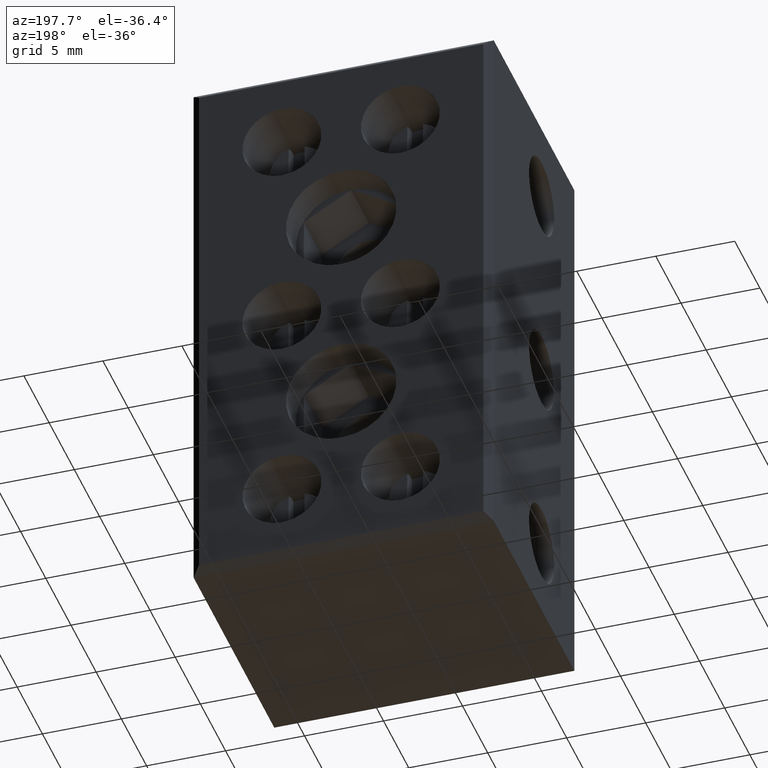
[diagram: clean part render]
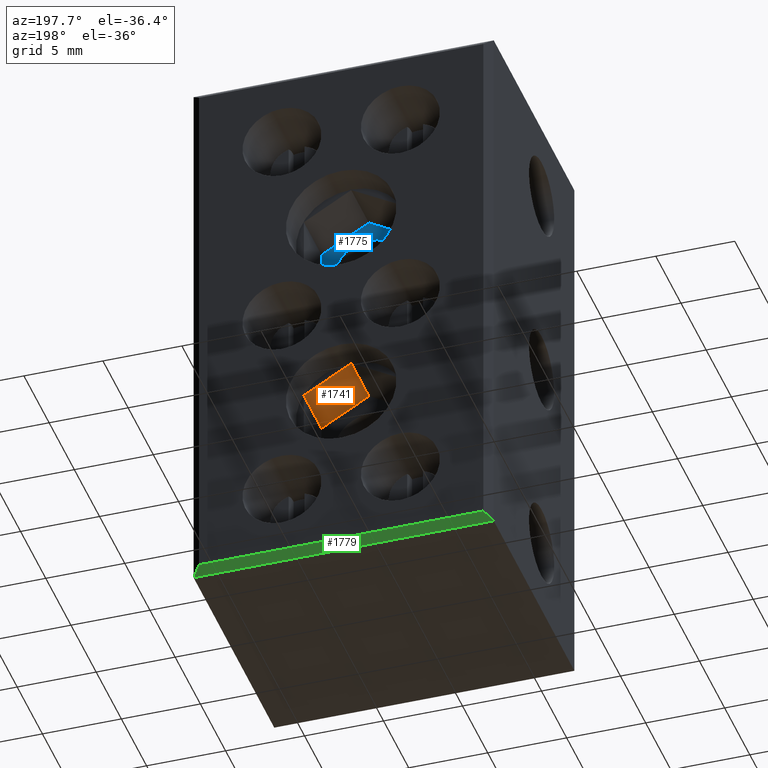
[diagram: same view with three faces highlighted in distinct colors, each labeled with its STEP entity id]
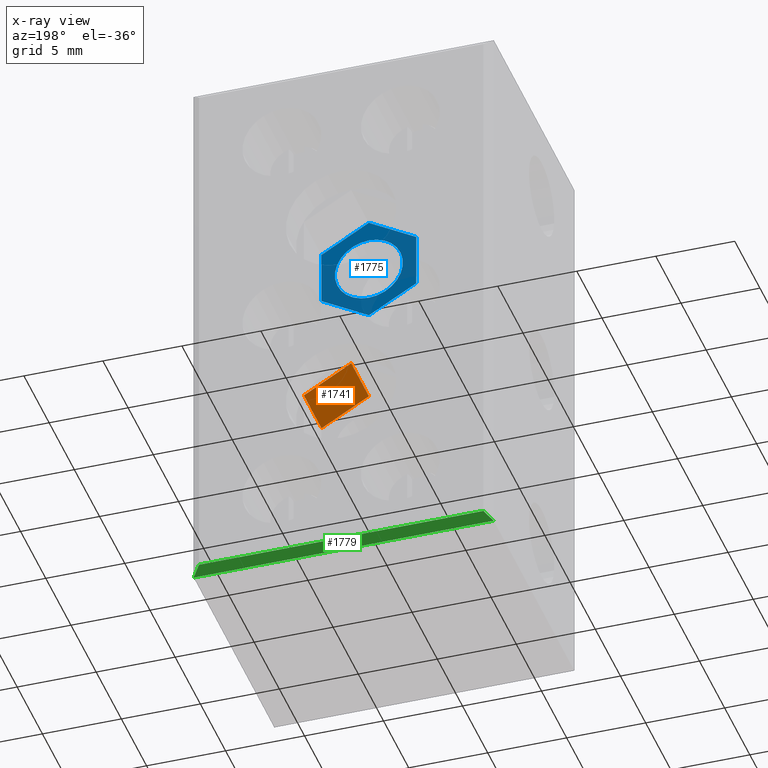
[diagram: x-ray of the same camera — body ghosted, the three highlighted faces saturated]
A machine part, auxiliary view with three faces highlighted in distinct colors.
The next image is the same camera in x-ray (body ghosted, the three faces saturated) — at least one of them is partly hidden behind the body in this view.
Their STEP definitions:

[orange] entity #1741 — the highlighted planar face has unit normal (0.5, -0, 0.866).
#332 = CARTESIAN_POINT ( 'NONE',  ( 6487.257784387873500, 15.00000000000000400, -21.02359777509169100 ) ) ;
#333 = DIRECTION ( 'NONE',  ( -0.8660254037844640200, -0.0000000000000000000, 0.4999999999999558100 ) ) ;
#371 = LINE ( 'NONE', #332, #5658 ) ;
#513 = CARTESIAN_POINT ( 'NONE',  ( 6490.257784387872600, 11.50000000000000200, -22.75564858265991600 ) ) ;
#537 = LINE ( 'NONE', #513, #5666 ) ;
#541 = DIRECTION ( 'NONE',  ( -0.0000000000000000000, -1.000000000000000000, -0.0000000000000000000 ) ) ;
#565 = CARTESIAN_POINT ( 'NONE',  ( 6487.257784387873500, 11.50000000000000200, -21.02359777509169100 ) ) ;
#580 = LINE ( 'NONE', #565, #5756 ) ;
#591 = DIRECTION ( 'NONE',  ( 0.8660254037844640200, 0.0000000000000000000, -0.4999999999999558100 ) ) ;
#626 = LINE ( 'NONE', #644, #5752 ) ;
#633 = DIRECTION ( 'NONE',  ( -0.0000000000000000000, -1.000000000000000000, -0.0000000000000000000 ) ) ;
#644 = CARTESIAN_POINT ( 'NONE',  ( 6487.257784387873500, 11.50000000000000200, -21.02359777509171600 ) ) ;
#1284 = EDGE_CURVE ( 'NONE', #2378, #2377, #371, .T. ) ;
#1340 = EDGE_CURVE ( 'NONE', #2378, #2379, #537, .T. ) ;
#1355 = EDGE_CURVE ( 'NONE', #2395, #2379, #580, .T. ) ;
#1372 = EDGE_CURVE ( 'NONE', #2377, #2395, #626, .T. ) ;
#1741 = ADVANCED_FACE ( 'NONE', ( #7526 ), #7547, .F. ) ;
#2377 = VERTEX_POINT ( 'NONE', #8197 ) ;
#2378 = VERTEX_POINT ( 'NONE', #8213 ) ;
#2379 = VERTEX_POINT ( 'NONE', #8222 ) ;
#2395 = VERTEX_POINT ( 'NONE', #8235 ) ;
#2611 = EDGE_LOOP ( 'NONE', ( #3008, #3032, #3029, #3030 ) ) ;
#3008 = ORIENTED_EDGE ( 'NONE', *, *, #1340, .T. ) ;
#3029 = ORIENTED_EDGE ( 'NONE', *, *, #1372, .F. ) ;
#3030 = ORIENTED_EDGE ( 'NONE', *, *, #1284, .F. ) ;
#3032 = ORIENTED_EDGE ( 'NONE', *, *, #1355, .F. ) ;
#4297 = AXIS2_PLACEMENT_3D ( 'NONE', #7520, #7540, #7550 ) ;
#5658 = VECTOR ( 'NONE', #333, 1000.000000000000100 ) ;
#5666 = VECTOR ( 'NONE', #541, 1000.000000000000000 ) ;
#5752 = VECTOR ( 'NONE', #633, 1000.000000000000000 ) ;
#5756 = VECTOR ( 'NONE', #591, 1000.000000000000100 ) ;
#7520 = CARTESIAN_POINT ( 'NONE',  ( 6487.257784387873500, 11.50000000000000200, -21.02359777509169100 ) ) ;
#7526 = FACE_OUTER_BOUND ( 'NONE', #2611, .T. ) ;
#7540 = DIRECTION ( 'NONE',  ( 0.4999999999999558700, -0.0000000000000000000, 0.8660254037844641300 ) ) ;
#7547 = PLANE ( 'NONE',  #4297 ) ;
#7550 = DIRECTION ( 'NONE',  ( 0.8660254037844640200, 0.0000000000000000000, -0.4999999999999558100 ) ) ;
#8197 = CARTESIAN_POINT ( 'NONE',  ( 6487.257784387873500, 15.00000000000000400, -21.02359777509178700 ) ) ;
#8213 = CARTESIAN_POINT ( 'NONE',  ( 6490.257784387872600, 15.00000000000000400, -22.75564858265991600 ) ) ;
#8222 = CARTESIAN_POINT ( 'NONE',  ( 6490.257784387872600, 11.50000000000000200, -22.75564858265991600 ) ) ;
#8235 = CARTESIAN_POINT ( 'NONE',  ( 6487.257784387873500, 11.50000000000000200, -21.02359777509169400 ) ) ;

[blue] entity #1775 — the highlighted planar face has unit normal (0, 1, 0).
#335 = LINE ( 'NONE', #370, #5613 ) ;
#368 = DIRECTION ( 'NONE',  ( 0.0000000000000000000, -0.0000000000000000000, 1.000000000000000000 ) ) ;
#370 = CARTESIAN_POINT ( 'NONE',  ( 6484.257784387873500, 11.50000000000000200, -8.039324876517927300 ) ) ;
#520 = LINE ( 'NONE', #529, #5699 ) ;
#529 = CARTESIAN_POINT ( 'NONE',  ( 6487.257784387873500, 11.50000000000000200, -8.039324876517927300 ) ) ;
#538 = DIRECTION ( 'NONE',  ( 0.8660254037844596900, 0.0000000000000000000, -0.4999999999999634700 ) ) ;
#566 = DIRECTION ( 'NONE',  ( -0.8660254037844367100, 0.0000000000000000000, -0.5000000000000034400 ) ) ;
#568 = DIRECTION ( 'NONE',  ( -0.0000000000000000000, 0.0000000000000000000, -1.000000000000000000 ) ) ;
#571 = CARTESIAN_POINT ( 'NONE',  ( 6490.257784387873500, 11.50000000000000200, -8.039324876517927300 ) ) ;
#584 = LINE ( 'NONE', #594, #5710 ) ;
#587 = LINE ( 'NONE', #571, #5672 ) ;
#594 = CARTESIAN_POINT ( 'NONE',  ( 6490.257784387873500, 11.50000000000000200, -13.23547729922364100 ) ) ;
#707 = DIRECTION ( 'NONE',  ( -0.8660254037844475900, 0.0000000000000000000, 0.4999999999999845100 ) ) ;
#718 = CARTESIAN_POINT ( 'NONE',  ( 6487.257784387870700, 11.50000000000000200, -14.96752810679413800 ) ) ;
#731 = LINE ( 'NONE', #718, #5743 ) ;
#748 = LINE ( 'NONE', #761, #5822 ) ;
#761 = CARTESIAN_POINT ( 'NONE',  ( 6484.257784387873500, 11.50000000000000200, -9.771375684087036700 ) ) ;
#762 = DIRECTION ( 'NONE',  ( 0.8660254037844178400, 0.0000000000000000000, 0.5000000000000360800 ) ) ;
#795 = DIRECTION ( 'NONE',  ( 0.0000000000000000000, 0.0000000000000000000, 1.000000000000000000 ) ) ;
#797 = DIRECTION ( 'NONE',  ( -0.0000000000000000000, -1.000000000000000000, -0.0000000000000000000 ) ) ;
#822 = CARTESIAN_POINT ( 'NONE',  ( 6487.257784387872600, 11.50000000000000200, -11.50342649165530100 ) ) ;
#987 = EDGE_CURVE ( 'NONE', #6464, #6497, #5965, .T. ) ;
#1279 = EDGE_CURVE ( 'NONE', #2382, #2366, #335, .T. ) ;
#1335 = EDGE_CURVE ( 'NONE', #2360, #2393, #520, .T. ) ;
#1347 = EDGE_CURVE ( 'NONE', #2393, #2365, #587, .T. ) ;
#1358 = EDGE_CURVE ( 'NONE', #2365, #2367, #584, .T. ) ;
#1399 = EDGE_CURVE ( 'NONE', #2367, #2382, #731, .T. ) ;
#1417 = EDGE_CURVE ( 'NONE', #2366, #2360, #748, .T. ) ;
#1429 = EDGE_CURVE ( 'NONE', #6497, #6464, #5783, .T. ) ;
#1775 = ADVANCED_FACE ( 'NONE', ( #7692, #7718 ), #7694, .T. ) ;
#2360 = VERTEX_POINT ( 'NONE', #8212 ) ;
#2365 = VERTEX_POINT ( 'NONE', #8195 ) ;
#2366 = VERTEX_POINT ( 'NONE', #8204 ) ;
#2367 = VERTEX_POINT ( 'NONE', #8220 ) ;
#2382 = VERTEX_POINT ( 'NONE', #8205 ) ;
#2393 = VERTEX_POINT ( 'NONE', #8232 ) ;
#2710 = EDGE_LOOP ( 'NONE', ( #3086, #3091, #3082, #3000, #3103, #3094 ) ) ;
#2728 = EDGE_LOOP ( 'NONE', ( #3117, #3070 ) ) ;
#3000 = ORIENTED_EDGE ( 'NONE', *, *, #1335, .T. ) ;
#3070 = ORIENTED_EDGE ( 'NONE', *, *, #1429, .T. ) ;
#3082 = ORIENTED_EDGE ( 'NONE', *, *, #1417, .T. ) ;
#3086 = ORIENTED_EDGE ( 'NONE', *, *, #1399, .T. ) ;
#3091 = ORIENTED_EDGE ( 'NONE', *, *, #1279, .T. ) ;
#3094 = ORIENTED_EDGE ( 'NONE', *, *, #1358, .T. ) ;
#3103 = ORIENTED_EDGE ( 'NONE', *, *, #1347, .T. ) ;
#3117 = ORIENTED_EDGE ( 'NONE', *, *, #987, .T. ) ;
#4358 = AXIS2_PLACEMENT_3D ( 'NONE', #7675, #7681, #7693 ) ;
#4760 = CARTESIAN_POINT ( 'NONE',  ( 6487.257784387872600, 11.50000000000000200, -11.50342649165530100 ) ) ;
#4761 = DIRECTION ( 'NONE',  ( 0.0000000000000000000, 0.0000000000000000000, 1.000000000000000000 ) ) ;
#4767 = DIRECTION ( 'NONE',  ( -0.0000000000000000000, -1.000000000000000000, -0.0000000000000000000 ) ) ;
#5613 = VECTOR ( 'NONE', #368, 1000.000000000000000 ) ;
#5672 = VECTOR ( 'NONE', #568, 1000.000000000000000 ) ;
#5699 = VECTOR ( 'NONE', #538, 1000.000000000000200 ) ;
#5710 = VECTOR ( 'NONE', #566, 1000.000000000000000 ) ;
#5743 = VECTOR ( 'NONE', #707, 1000.000000000000000 ) ;
#5783 = CIRCLE ( 'NONE', #5805, 2.150000000000308100 ) ;
#5805 = AXIS2_PLACEMENT_3D ( 'NONE', #822, #797, #795 ) ;
#5822 = VECTOR ( 'NONE', #762, 1000.000000000000000 ) ;
#5959 = AXIS2_PLACEMENT_3D ( 'NONE', #4760, #4767, #4761 ) ;
#5965 = CIRCLE ( 'NONE', #5959, 2.150000000000308100 ) ;
#6464 = VERTEX_POINT ( 'NONE', #7447 ) ;
#6497 = VERTEX_POINT ( 'NONE', #7402 ) ;
#7402 = CARTESIAN_POINT ( 'NONE',  ( 6487.257784387872600, 11.50000000000000200, -13.65342649165560800 ) ) ;
#7447 = CARTESIAN_POINT ( 'NONE',  ( 6487.257784387872600, 11.50000000000000200, -9.353426491654993000 ) ) ;
#7675 = CARTESIAN_POINT ( 'NONE',  ( 6487.257784387873500, 11.50000000000000200, -8.039324876517927300 ) ) ;
#7681 = DIRECTION ( 'NONE',  ( 0.0000000000000000000, 1.000000000000000000, 0.0000000000000000000 ) ) ;
#7692 = FACE_OUTER_BOUND ( 'NONE', #2710, .T. ) ;
#7693 = DIRECTION ( 'NONE',  ( 0.0000000000000000000, -0.0000000000000000000, 1.000000000000000000 ) ) ;
#7694 = PLANE ( 'NONE',  #4358 ) ;
#7718 = FACE_BOUND ( 'NONE', #2728, .T. ) ;
#8195 = CARTESIAN_POINT ( 'NONE',  ( 6490.257784387873500, 11.50000000000000200, -13.23547729922364100 ) ) ;
#8204 = CARTESIAN_POINT ( 'NONE',  ( 6484.257784387873500, 11.50000000000000200, -9.771375684087036700 ) ) ;
#8205 = CARTESIAN_POINT ( 'NONE',  ( 6484.257784387873500, 11.50000000000000200, -13.23547729922680500 ) ) ;
#8212 = CARTESIAN_POINT ( 'NONE',  ( 6487.257784387873500, 11.50000000000000200, -8.039324876517930800 ) ) ;
#8220 = CARTESIAN_POINT ( 'NONE',  ( 6487.257784387870700, 11.50000000000000200, -14.96752810679413800 ) ) ;
#8232 = CARTESIAN_POINT ( 'NONE',  ( 6490.257784387873500, 11.50000000000000200, -9.771375684086702800 ) ) ;

[green] entity #1779 — the highlighted planar face has unit normal (0, 0.7071, -0.7071).
#435 = LINE ( 'NONE', #456, #5641 ) ;
#436 = DIRECTION ( 'NONE',  ( 1.000000000000000000, -0.0000000000000000000, 0.0000000000000000000 ) ) ;
#456 = CARTESIAN_POINT ( 'NONE',  ( 6495.254189631172300, 17.00000000000000000, -35.50342649166538000 ) ) ;
#553 = DIRECTION ( 'NONE',  ( 0.5773502691893868100, -0.5773502691895910900, -0.5773502691898995100 ) ) ;
#577 = LINE ( 'NONE', #578, #5677 ) ;
#578 = CARTESIAN_POINT ( 'NONE',  ( 6496.257784387882600, 17.00000000000000000, -35.50342649166538000 ) ) ;
#599 = CARTESIAN_POINT ( 'NONE',  ( 6477.757784387872600, 16.50000000001032100, -36.00342649165533300 ) ) ;
#609 = LINE ( 'NONE', #599, #5712 ) ;
#622 = DIRECTION ( 'NONE',  ( -1.000000000000000000, -0.0000000000000000000, 0.0000000000000000000 ) ) ;
#628 = DIRECTION ( 'NONE',  ( 0.5773502691897299800, 0.5773502691894174500, 0.5773502691897299800 ) ) ;
#636 = CARTESIAN_POINT ( 'NONE',  ( 6496.004189568775500, 16.50000000001032100, -36.00342649165533300 ) ) ;
#640 = LINE ( 'NONE', #636, #5716 ) ;
#1313 = EDGE_CURVE ( 'NONE', #6640, #6638, #435, .T. ) ;
#1351 = EDGE_CURVE ( 'NONE', #6638, #2397, #577, .T. ) ;
#1364 = EDGE_CURVE ( 'NONE', #2398, #6640, #609, .T. ) ;
#1369 = EDGE_CURVE ( 'NONE', #2397, #2398, #640, .T. ) ;
#1779 = ADVANCED_FACE ( 'NONE', ( #7725 ), #7671, .T. ) ;
#2397 = VERTEX_POINT ( 'NONE', #8187 ) ;
#2398 = VERTEX_POINT ( 'NONE', #8194 ) ;
#2675 = EDGE_LOOP ( 'NONE', ( #2991, #3040, #2959, #2945 ) ) ;
#2945 = ORIENTED_EDGE ( 'NONE', *, *, #1369, .T. ) ;
#2959 = ORIENTED_EDGE ( 'NONE', *, *, #1351, .T. ) ;
#2991 = ORIENTED_EDGE ( 'NONE', *, *, #1364, .T. ) ;
#3040 = ORIENTED_EDGE ( 'NONE', *, *, #1313, .T. ) ;
#4373 = AXIS2_PLACEMENT_3D ( 'NONE', #7761, #7766, #7739 ) ;
#5641 = VECTOR ( 'NONE', #436, 1000.000000000000000 ) ;
#5677 = VECTOR ( 'NONE', #553, 1000.000000000000100 ) ;
#5712 = VECTOR ( 'NONE', #628, 1000.000000000000000 ) ;
#5716 = VECTOR ( 'NONE', #622, 1000.000000000000000 ) ;
#6638 = VERTEX_POINT ( 'NONE', #7299 ) ;
#6640 = VERTEX_POINT ( 'NONE', #7305 ) ;
#7299 = CARTESIAN_POINT ( 'NONE',  ( 6496.257784387877100, 16.99999999999986100, -35.50342649166532300 ) ) ;
#7305 = CARTESIAN_POINT ( 'NONE',  ( 6478.257784387862600, 17.00000000000000000, -35.50342649166538000 ) ) ;
#7671 = PLANE ( 'NONE',  #4373 ) ;
#7725 = FACE_OUTER_BOUND ( 'NONE', #2675, .T. ) ;
#7739 = DIRECTION ( 'NONE',  ( 0.0000000000000000000, 0.7071067811863586100, 0.7071067811867364200 ) ) ;
#7761 = CARTESIAN_POINT ( 'NONE',  ( 6495.254189631172300, 17.00000000000000000, -35.50342649166538000 ) ) ;
#7766 = DIRECTION ( 'NONE',  ( 0.0000000000000000000, 0.7071067811867364200, -0.7071067811863586100 ) ) ;
#8187 = CARTESIAN_POINT ( 'NONE',  ( 6496.757784387872600, 16.50000000001021400, -36.00342649165598600 ) ) ;
#8194 = CARTESIAN_POINT ( 'NONE',  ( 6477.757784387872600, 16.50000000001018600, -36.00342649165546800 ) ) ;